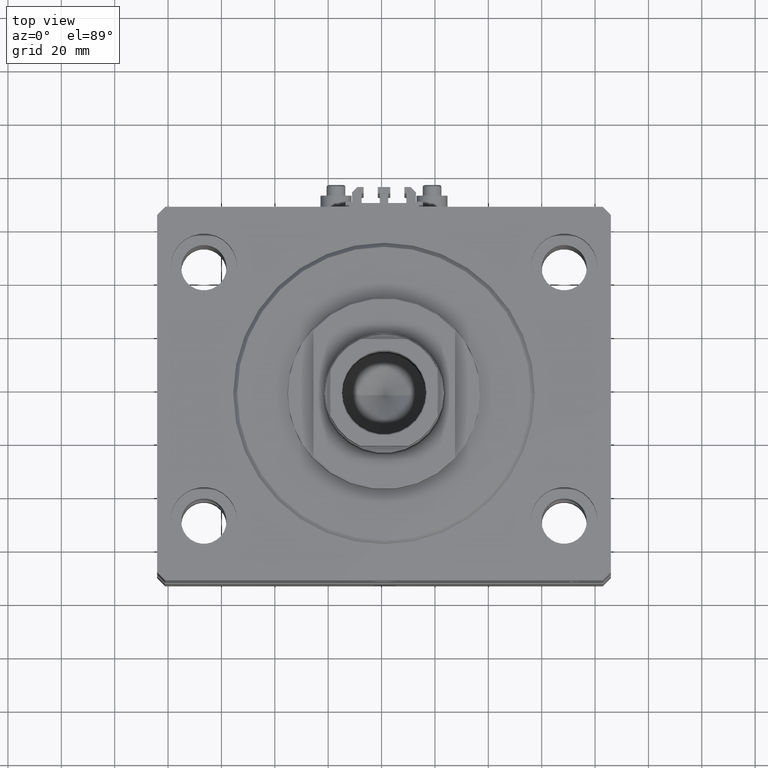
[diagram: clean part render]
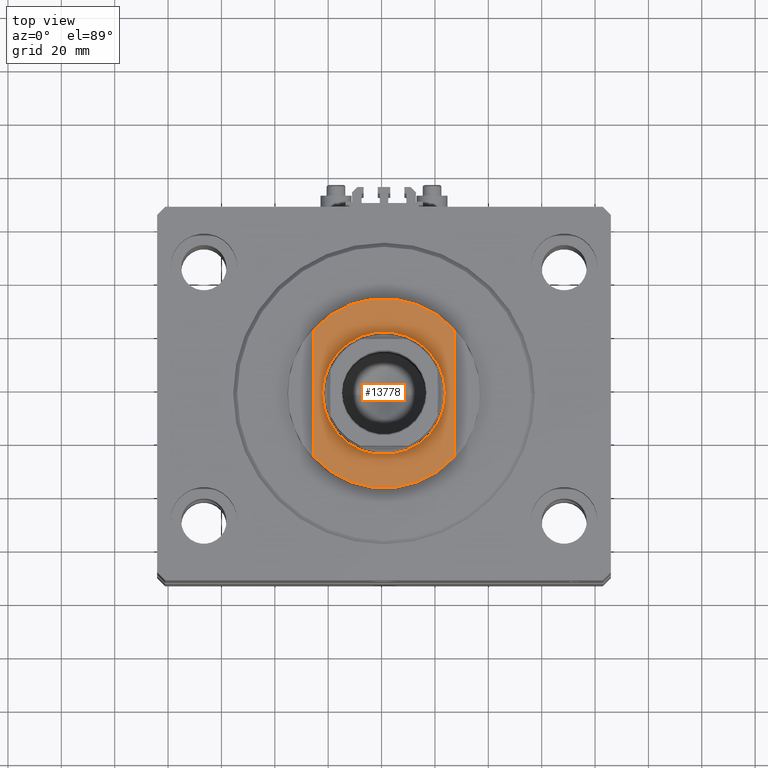
[diagram: same view with one face highlighted and labeled with its STEP entity id]
A machine part, top view. The second image highlights one B-rep face of the part: STEP entity #13778.
In plain terms, the highlighted planar face has unit normal (0, 0, 1).
Its self-contained STEP definition (entity closure, byte-faithful):
#320 = VERTEX_POINT ( 'NONE', #10564 ) ;
#812 = ORIENTED_EDGE ( 'NONE', *, *, #19890, .T. ) ;
#1643 = EDGE_CURVE ( 'NONE', #32993, #29555, #24888, .T. ) ;
#2240 = ORIENTED_EDGE ( 'NONE', *, *, #1643, .T. ) ;
#2540 = CARTESIAN_POINT ( 'NONE',  ( -26.50000000000000000, 23.62202362203536765, -8.000000000000000000 ) ) ;
#5031 = DIRECTION ( 'NONE',  ( 0.000000000000000000, 0.000000000000000000, -1.000000000000000000 ) ) ;
#5626 = AXIS2_PLACEMENT_3D ( 'NONE', #10172, #21909, #37341 ) ;
#6044 = EDGE_CURVE ( 'NONE', #29555, #20328, #10335, .T. ) ;
#6441 = ORIENTED_EDGE ( 'NONE', *, *, #20810, .F. ) ;
#6483 = PLANE ( 'NONE',  #41713 ) ;
#7513 = CARTESIAN_POINT ( 'NONE',  ( 0.000000000000000000, 0.000000000000000000, -8.000000000000000000 ) ) ;
#8534 = EDGE_CURVE ( 'NONE', #38407, #32993, #16655, .T. ) ;
#9422 = EDGE_CURVE ( 'NONE', #22420, #320, #47982, .T. ) ;
#10172 = CARTESIAN_POINT ( 'NONE',  ( 0.000000000000000000, 0.000000000000000000, -8.000000000000000000 ) ) ;
#10335 = CIRCLE ( 'NONE', #5626, 35.49999999999996447 ) ;
#10564 = CARTESIAN_POINT ( 'NONE',  ( 23.00000000000001776, 2.816687638038914718E-15, -8.000000000000000000 ) ) ;
#13778 = ADVANCED_FACE ( 'NONE', ( #43697, #40028 ), #6483, .T. ) ;
#15848 = LINE ( 'NONE', #30777, #26944 ) ;
#16655 = CIRCLE ( 'NONE', #44026, 35.49999999999996447 ) ;
#17560 = CARTESIAN_POINT ( 'NONE',  ( 26.50000000000000000, -36.36963018783666257, -8.000000000000000000 ) ) ;
#17674 = AXIS2_PLACEMENT_3D ( 'NONE', #46901, #25340, #43959 ) ;
#17749 = DIRECTION ( 'NONE',  ( -1.000000000000000000, 0.000000000000000000, -0.000000000000000000 ) ) ;
#18358 = ORIENTED_EDGE ( 'NONE', *, *, #9422, .T. ) ;
#18772 = DIRECTION ( 'NONE',  ( -1.000000000000000000, 0.000000000000000000, 0.000000000000000000 ) ) ;
#19488 = DIRECTION ( 'NONE',  ( -0.000000000000000000, -0.000000000000000000, 1.000000000000000000 ) ) ;
#19890 = EDGE_CURVE ( 'NONE', #320, #22420, #24676, .T. ) ;
#20328 = VERTEX_POINT ( 'NONE', #41379 ) ;
#20810 = EDGE_CURVE ( 'NONE', #38407, #20328, #15848, .T. ) ;
#21909 = DIRECTION ( 'NONE',  ( 0.000000000000000000, 0.000000000000000000, -1.000000000000000000 ) ) ;
#22420 = VERTEX_POINT ( 'NONE', #46008 ) ;
#22999 = ORIENTED_EDGE ( 'NONE', *, *, #8534, .T. ) ;
#24676 = CIRCLE ( 'NONE', #17674, 23.00000000000001776 ) ;
#24888 = LINE ( 'NONE', #17560, #25803 ) ;
#25008 = EDGE_LOOP ( 'NONE', ( #18358, #812 ) ) ;
#25340 = DIRECTION ( 'NONE',  ( -0.000000000000000000, -0.000000000000000000, 1.000000000000000000 ) ) ;
#25803 = VECTOR ( 'NONE', #46940, 1000.000000000000000 ) ;
#26849 = AXIS2_PLACEMENT_3D ( 'NONE', #7513, #19488, #18772 ) ;
#26944 = VECTOR ( 'NONE', #38359, 1000.000000000000000 ) ;
#29005 = CARTESIAN_POINT ( 'NONE',  ( 0.000000000000000000, 0.000000000000000000, -8.000000000000000000 ) ) ;
#29555 = VERTEX_POINT ( 'NONE', #33782 ) ;
#30777 = CARTESIAN_POINT ( 'NONE',  ( -26.50000000000000000, -36.36963018783666257, -8.000000000000000000 ) ) ;
#32993 = VERTEX_POINT ( 'NONE', #37484 ) ;
#33782 = CARTESIAN_POINT ( 'NONE',  ( 26.50000000000000000, -23.62202362203536765, -8.000000000000000000 ) ) ;
#35547 = EDGE_LOOP ( 'NONE', ( #22999, #2240, #36181, #6441 ) ) ;
#36181 = ORIENTED_EDGE ( 'NONE', *, *, #6044, .T. ) ;
#36353 = DIRECTION ( 'NONE',  ( 0.000000000000000000, 0.000000000000000000, -1.000000000000000000 ) ) ;
#37341 = DIRECTION ( 'NONE',  ( -1.000000000000000000, 0.000000000000000000, 0.000000000000000000 ) ) ;
#37484 = CARTESIAN_POINT ( 'NONE',  ( 26.50000000000000000, 23.62202362203536765, -8.000000000000000000 ) ) ;
#38359 = DIRECTION ( 'NONE',  ( -0.000000000000000000, -1.000000000000000000, -0.000000000000000000 ) ) ;
#38407 = VERTEX_POINT ( 'NONE', #2540 ) ;
#38574 = CARTESIAN_POINT ( 'NONE',  ( 0.000000000000000000, 0.000000000000000000, -8.000000000000000000 ) ) ;
#39057 = DIRECTION ( 'NONE',  ( -1.000000000000000000, 0.000000000000000000, 0.000000000000000000 ) ) ;
#40028 = FACE_OUTER_BOUND ( 'NONE', #35547, .T. ) ;
#41379 = CARTESIAN_POINT ( 'NONE',  ( -26.50000000000000711, -23.62202362203537476, -8.000000000000000000 ) ) ;
#41713 = AXIS2_PLACEMENT_3D ( 'NONE', #29005, #36353, #17749 ) ;
#43697 = FACE_BOUND ( 'NONE', #25008, .T. ) ;
#43959 = DIRECTION ( 'NONE',  ( -1.000000000000000000, 0.000000000000000000, 0.000000000000000000 ) ) ;
#44026 = AXIS2_PLACEMENT_3D ( 'NONE', #38574, #5031, #39057 ) ;
#46008 = CARTESIAN_POINT ( 'NONE',  ( -23.00000000000001776, 0.000000000000000000, -8.000000000000000000 ) ) ;
#46901 = CARTESIAN_POINT ( 'NONE',  ( 0.000000000000000000, 0.000000000000000000, -8.000000000000000000 ) ) ;
#46940 = DIRECTION ( 'NONE',  ( 0.000000000000000000, -1.000000000000000000, -0.000000000000000000 ) ) ;
#47982 = CIRCLE ( 'NONE', #26849, 23.00000000000001776 ) ;